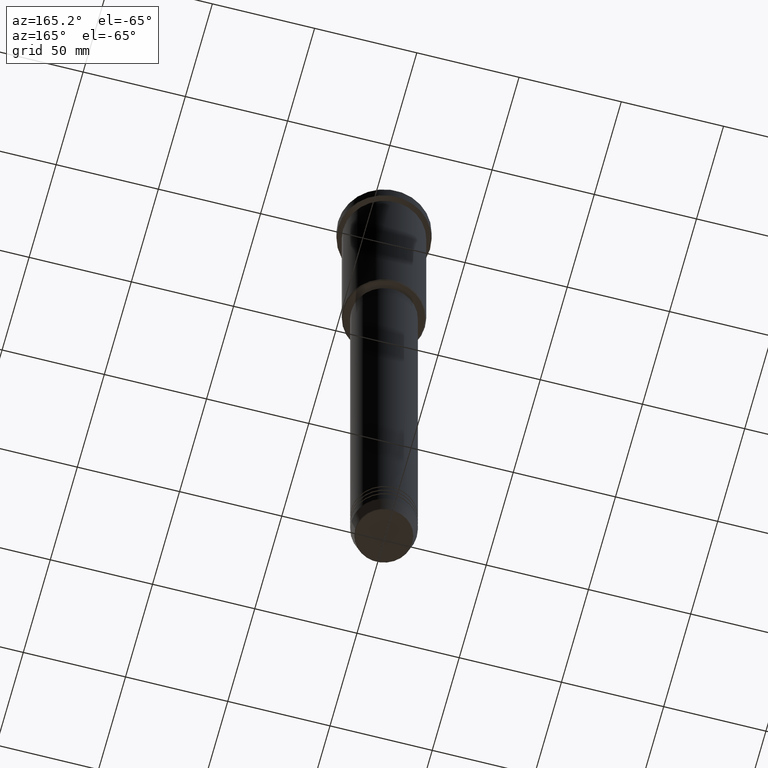
[diagram: clean part render]
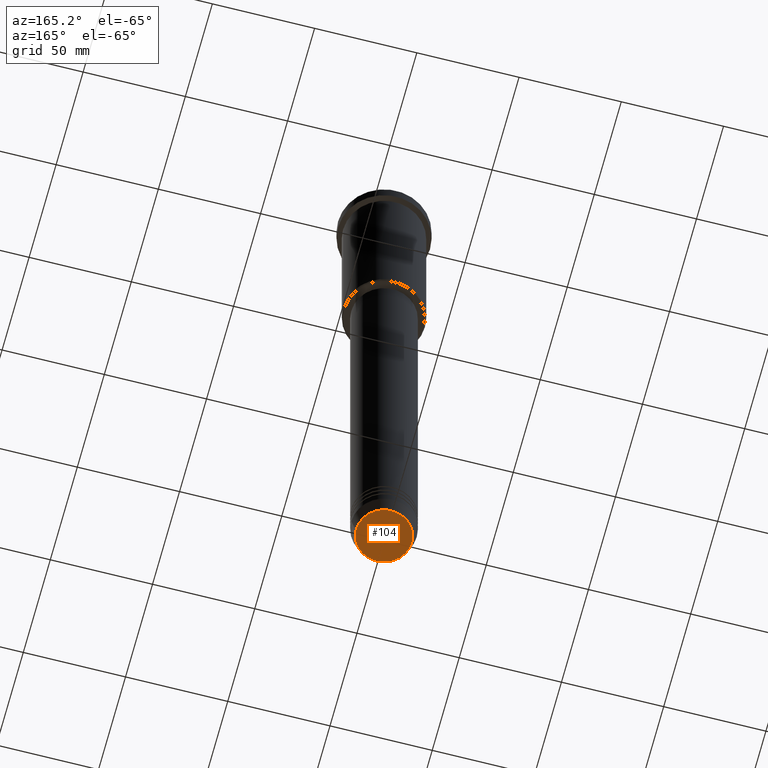
[diagram: same view with one face highlighted and labeled with its STEP entity id]
A machine part, auxiliary view. The second image highlights one B-rep face of the part: STEP entity #104.
In plain terms, the highlighted planar face has unit normal (0, -0, 1).
Its self-contained STEP definition (entity closure, byte-faithful):
#30 = VERTEX_POINT ( 'NONE', #287 ) ;
#41 = DIRECTION ( 'NONE',  ( 0.000000000000000000, 0.000000000000000000, -1.000000000000000000 ) ) ;
#43 = PLANE ( 'NONE',  #1059 ) ;
#77 = CARTESIAN_POINT ( 'NONE',  ( 0.000000000000000000, 0.000000000000000000, -340.0000000000000000 ) ) ;
#104 = ADVANCED_FACE ( 'NONE', ( #850 ), #43, .F. ) ;
#149 = DIRECTION ( 'NONE',  ( 0.000000000000000000, -0.000000000000000000, 1.000000000000000000 ) ) ;
#150 = VERTEX_POINT ( 'NONE', #1100 ) ;
#287 = CARTESIAN_POINT ( 'NONE',  ( -13.60671756277709399, 1.695915260300171258E-15, -340.0000000000000000 ) ) ;
#319 = CARTESIAN_POINT ( 'NONE',  ( 0.000000000000000000, 0.000000000000000000, -340.0000000000000000 ) ) ;
#346 = ORIENTED_EDGE ( 'NONE', *, *, #870, .T. ) ;
#573 = CIRCLE ( 'NONE', #1044, 13.60671756277709399 ) ;
#594 = DIRECTION ( 'NONE',  ( 1.000000000000000000, 0.000000000000000000, 0.000000000000000000 ) ) ;
#599 = ORIENTED_EDGE ( 'NONE', *, *, #1070, .T. ) ;
#636 = DIRECTION ( 'NONE',  ( 1.000000000000000000, 0.000000000000000000, 0.000000000000000000 ) ) ;
#709 = CIRCLE ( 'NONE', #1089, 13.60671756277709399 ) ;
#761 = CARTESIAN_POINT ( 'NONE',  ( 0.000000000000000000, 0.000000000000000000, -340.0000000000000000 ) ) ;
#806 = DIRECTION ( 'NONE',  ( 0.000000000000000000, 0.000000000000000000, -1.000000000000000000 ) ) ;
#850 = FACE_OUTER_BOUND ( 'NONE', #1082, .T. ) ;
#870 = EDGE_CURVE ( 'NONE', #30, #150, #573, .T. ) ;
#1022 = DIRECTION ( 'NONE',  ( 1.000000000000000000, 0.000000000000000000, 0.000000000000000000 ) ) ;
#1044 = AXIS2_PLACEMENT_3D ( 'NONE', #77, #806, #636 ) ;
#1059 = AXIS2_PLACEMENT_3D ( 'NONE', #319, #149, #1022 ) ;
#1070 = EDGE_CURVE ( 'NONE', #150, #30, #709, .T. ) ;
#1082 = EDGE_LOOP ( 'NONE', ( #599, #346 ) ) ;
#1089 = AXIS2_PLACEMENT_3D ( 'NONE', #761, #41, #594 ) ;
#1100 = CARTESIAN_POINT ( 'NONE',  ( 13.60671756277709399, 0.000000000000000000, -340.0000000000000000 ) ) ;